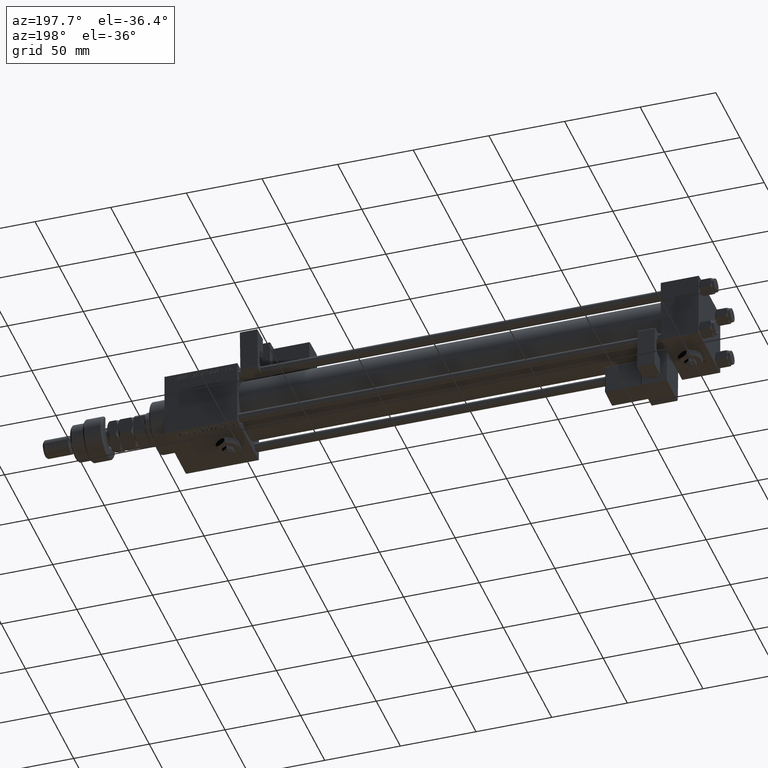
[diagram: clean part render]
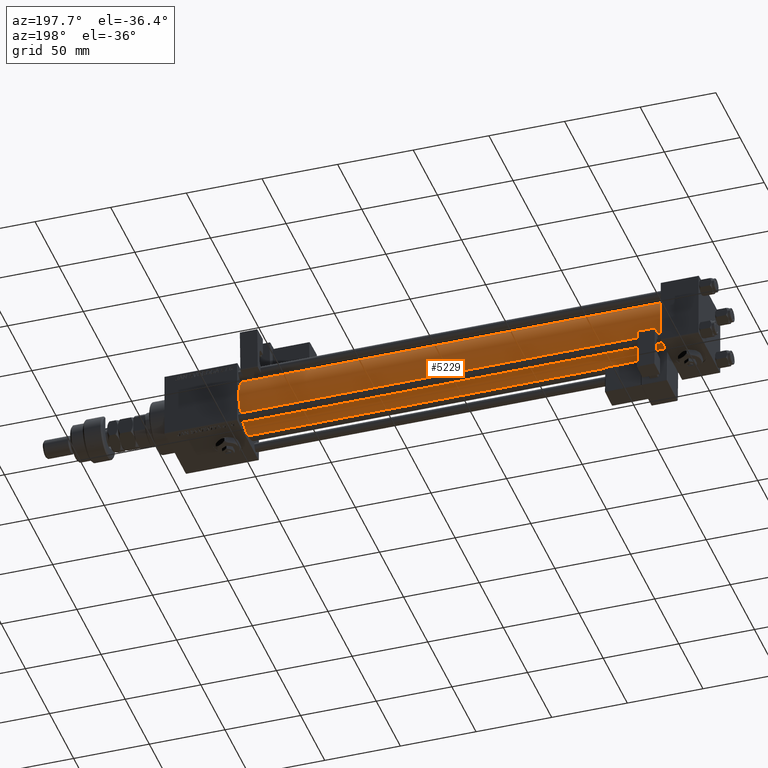
[diagram: same view with one face highlighted and labeled with its STEP entity id]
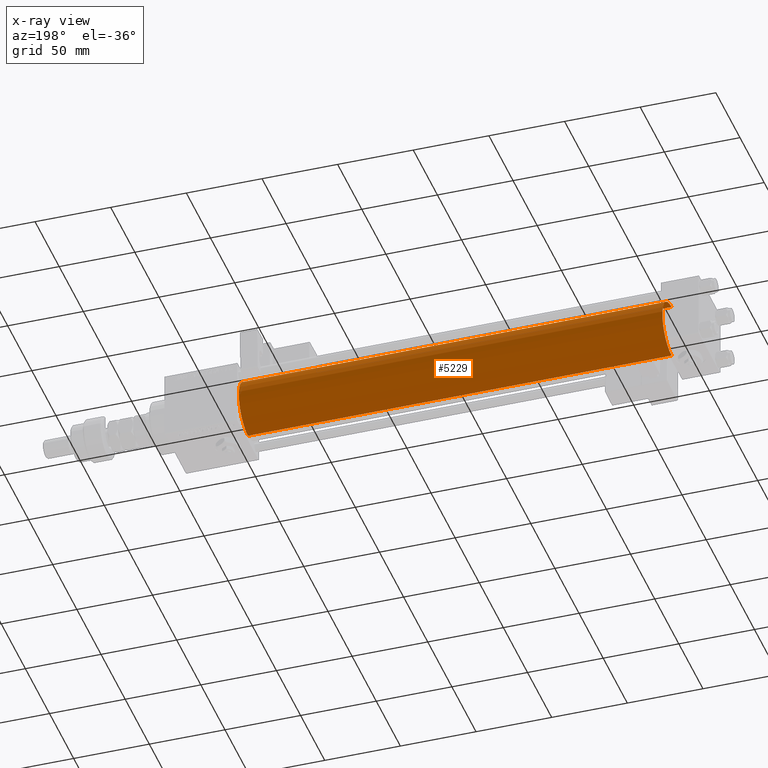
[diagram: x-ray of the same camera — body ghosted, the highlighted face saturated]
A machine part, auxiliary view. The second image highlights one B-rep face of the part: STEP entity #5229.
The next image is the same camera in x-ray: the body ghosted, the highlighted face saturated — about 0% of this face is hidden behind the body in this view.
In plain terms, the highlighted cylindrical surface (edge-blend (fillet) strip) has radius 19 mm, axis along (-1, -0, -0).
Its self-contained STEP definition (entity closure, byte-faithful):
#680 = ORIENTED_EDGE ( 'NONE', *, *, #27084, .T. ) ;
#1364 = EDGE_CURVE ( 'NONE', #55387, #22905, #38299, .T. ) ;
#2431 = CARTESIAN_POINT ( 'NONE',  ( 305.0000000000000568, -2.752562955852396712E-16, -19.00000000000000000 ) ) ;
#5229 = ADVANCED_FACE ( 'NONE', ( #51163 ), #50881, .T. ) ;
#5716 = CARTESIAN_POINT ( 'NONE',  ( 25.00000000000002132, -2.752562955852396712E-16, -19.00000000000000000 ) ) ;
#9555 = VECTOR ( 'NONE', #45995, 1000.000000000000000 ) ;
#9561 = AXIS2_PLACEMENT_3D ( 'NONE', #21059, #43127, #25420 ) ;
#11617 = VERTEX_POINT ( 'NONE', #5716 ) ;
#14634 = LINE ( 'NONE', #2431, #9555 ) ;
#16295 = DIRECTION ( 'NONE',  ( 0.000000000000000000, 0.000000000000000000, 1.000000000000000000 ) ) ;
#17364 = ORIENTED_EDGE ( 'NONE', *, *, #1364, .F. ) ;
#21059 = CARTESIAN_POINT ( 'NONE',  ( 25.00000000000002132, -2.602085213965210642E-15, 0.000000000000000000 ) ) ;
#22764 = CARTESIAN_POINT ( 'NONE',  ( 25.00000000000002132, -2.602085213965210642E-15, 19.00000000000000000 ) ) ;
#22905 = VERTEX_POINT ( 'NONE', #37180 ) ;
#23439 = CIRCLE ( 'NONE', #9561, 19.00000000000000000 ) ;
#23645 = ORIENTED_EDGE ( 'NONE', *, *, #24460, .T. ) ;
#24460 = EDGE_CURVE ( 'NONE', #11617, #46488, #23439, .T. ) ;
#25420 = DIRECTION ( 'NONE',  ( 0.000000000000000000, 0.000000000000000000, 1.000000000000000000 ) ) ;
#27084 = EDGE_CURVE ( 'NONE', #55387, #11617, #14634, .T. ) ;
#27668 = VECTOR ( 'NONE', #38100, 1000.000000000000000 ) ;
#34001 = DIRECTION ( 'NONE',  ( -1.000000000000000000, -0.000000000000000000, -0.000000000000000000 ) ) ;
#37180 = CARTESIAN_POINT ( 'NONE',  ( 305.0000000000000568, -2.602085213965210642E-15, 19.00000000000000000 ) ) ;
#37255 = CARTESIAN_POINT ( 'NONE',  ( 305.0000000000000568, -2.602085213965210642E-15, 19.00000000000000000 ) ) ;
#38100 = DIRECTION ( 'NONE',  ( -1.000000000000000000, -0.000000000000000000, -0.000000000000000000 ) ) ;
#38299 = CIRCLE ( 'NONE', #51309, 19.00000000000000000 ) ;
#40830 = EDGE_CURVE ( 'NONE', #22905, #46488, #46257, .T. ) ;
#43127 = DIRECTION ( 'NONE',  ( 1.000000000000000000, -0.000000000000000000, 0.000000000000000000 ) ) ;
#45995 = DIRECTION ( 'NONE',  ( -1.000000000000000000, -0.000000000000000000, -0.000000000000000000 ) ) ;
#46257 = LINE ( 'NONE', #37255, #27668 ) ;
#46488 = VERTEX_POINT ( 'NONE', #22764 ) ;
#46783 = DIRECTION ( 'NONE',  ( 0.000000000000000000, 0.000000000000000000, -1.000000000000000000 ) ) ;
#46787 = CARTESIAN_POINT ( 'NONE',  ( 305.0000000000000568, -2.602085213965210642E-15, 0.000000000000000000 ) ) ;
#50228 = ORIENTED_EDGE ( 'NONE', *, *, #40830, .F. ) ;
#50881 = CYLINDRICAL_SURFACE ( 'NONE', #53356, 19.00000000000000000 ) ;
#51163 = FACE_OUTER_BOUND ( 'NONE', #51991, .T. ) ;
#51309 = AXIS2_PLACEMENT_3D ( 'NONE', #54928, #55215, #46783 ) ;
#51991 = EDGE_LOOP ( 'NONE', ( #17364, #680, #23645, #50228 ) ) ;
#53356 = AXIS2_PLACEMENT_3D ( 'NONE', #46787, #34001, #16295 ) ;
#54928 = CARTESIAN_POINT ( 'NONE',  ( 305.0000000000000568, -2.602085213965210642E-15, 0.000000000000000000 ) ) ;
#55215 = DIRECTION ( 'NONE',  ( 1.000000000000000000, 0.000000000000000000, 0.000000000000000000 ) ) ;
#55387 = VERTEX_POINT ( 'NONE', #55813 ) ;
#55813 = CARTESIAN_POINT ( 'NONE',  ( 305.0000000000000568, -2.752562955852396712E-16, -19.00000000000000000 ) ) ;